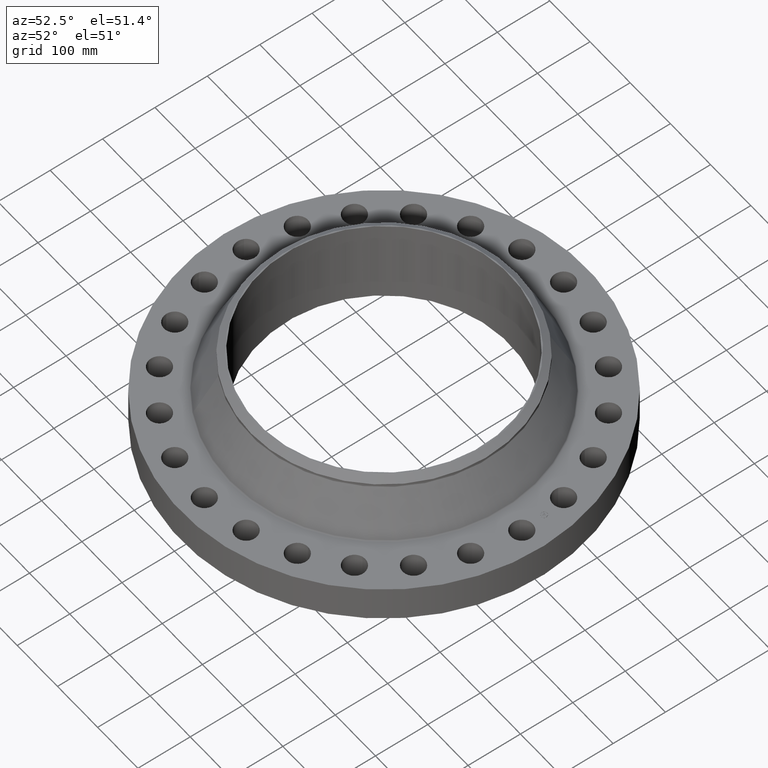
[diagram: clean part render]
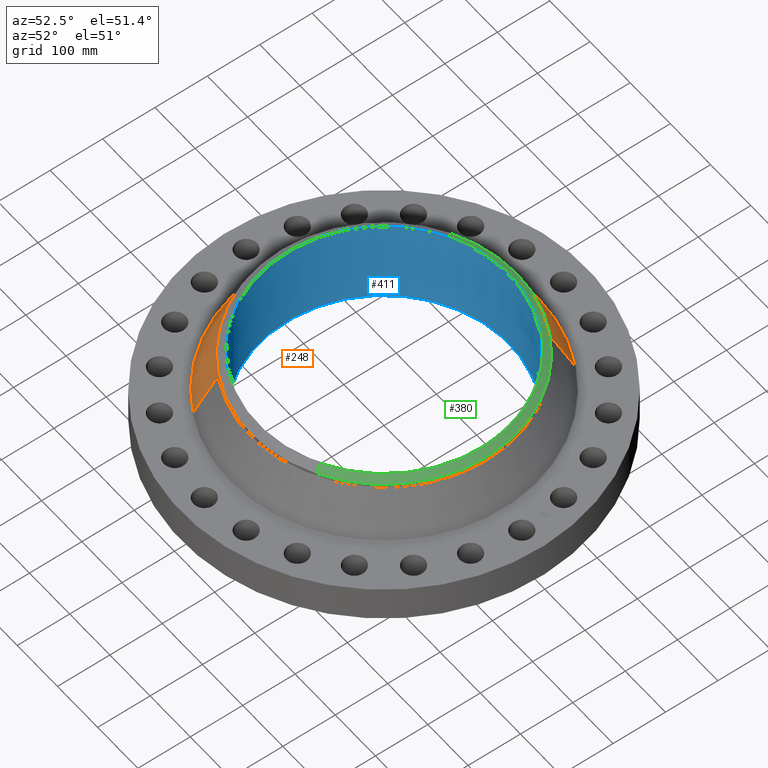
[diagram: same view with three faces highlighted in distinct colors, each labeled with its STEP entity id]
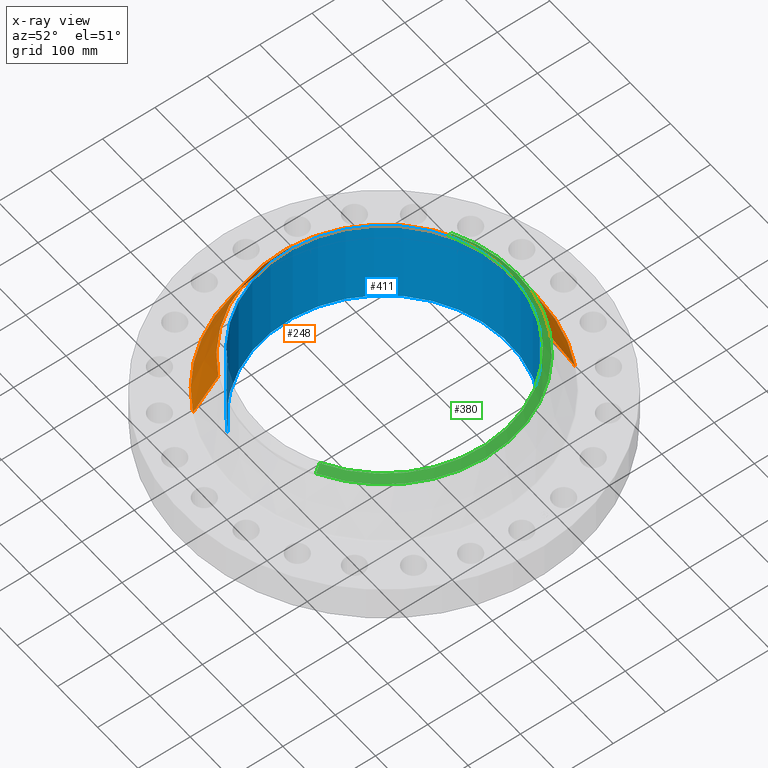
[diagram: x-ray of the same camera — body ghosted, the three highlighted faces saturated]
A machine part, auxiliary view with three faces highlighted in distinct colors.
The next image is the same camera in x-ray (body ghosted, the three faces saturated) — at least one of them is partly hidden behind the body in this view.
Their STEP definitions:

[orange] entity #248 — the highlighted conical surface has half-angle 25.721 deg.
#196=AXIS2_PLACEMENT_3D('Circle Axis2P3D',#194,#195,$) ;
#209=AXIS2_PLACEMENT_3D('Cone Axis2P3D',#206,#207,#208) ;
#239=AXIS2_PLACEMENT_3D('Circle Axis2P3D',#237,#238,$) ;
#167=CARTESIAN_POINT('Vertex',(5.52647292352,10.1161408309,2.81792133687)) ;
#174=CARTESIAN_POINT('Vertex',(-5.52647292352,-10.1161408309,2.81792133687)) ;
#194=CARTESIAN_POINT('Axis2P3D Location',(0.,0.,2.81792133687)) ;
#206=CARTESIAN_POINT('Axis2P3D Location',(0.,0.,5.9884067446)) ;
#211=CARTESIAN_POINT('Line Origine',(5.16036415479,9.44598322491,4.40316404073)) ;
#215=CARTESIAN_POINT('Vertex',(4.79425538606,8.77582561894,5.9884067446)) ;
#222=CARTESIAN_POINT('Vertex',(-4.79425538606,-8.77582561894,5.9884067446)) ;
#225=CARTESIAN_POINT('Line Origine',(-5.16036415479,-9.44598322491,4.40316404073)) ;
#237=CARTESIAN_POINT('Axis2P3D Location',(0.,0.,5.9884067446)) ;
#195=DIRECTION('Axis2P3D Direction',(0.,0.,-0.0393700787402)) ;
#207=DIRECTION('Axis2P3D Direction',(0.,0.,-0.0393700787402)) ;
#208=DIRECTION('Axis2P3D XDirection',(-0.0188750212049,-0.0345504945626,0.)) ;
#212=DIRECTION('Vector Direction',(0.00819154892625,0.0149945297313,-0.0354692219302)) ;
#226=DIRECTION('Vector Direction',(-0.00819154892625,-0.0149945297313,-0.0354692219302)) ;
#238=DIRECTION('Axis2P3D Direction',(0.,0.,-0.0393700787402)) ;
#213=VECTOR('Line Direction',#212,0.0393700787402) ;
#227=VECTOR('Line Direction',#226,0.0393700787402) ;
#243=ORIENTED_EDGE('',*,*,#198,.F.) ;
#244=ORIENTED_EDGE('',*,*,#229,.T.) ;
#245=ORIENTED_EDGE('',*,*,#241,.T.) ;
#246=ORIENTED_EDGE('',*,*,#217,.F.) ;
#248=ADVANCED_FACE('PartBody',(#247),#210,.T.) ;
#197=CIRCLE('generated circle',#196,11.5272810448) ;
#240=CIRCLE('generated circle',#239,10.) ;
#210=CONICAL_SURFACE('Cone',#209,10.,0.448915628643) ;
#198=EDGE_CURVE('',#175,#168,#197,.T.) ;
#217=EDGE_CURVE('',#168,#216,#214,.F.) ;
#229=EDGE_CURVE('',#175,#223,#228,.F.) ;
#241=EDGE_CURVE('',#223,#216,#240,.T.) ;
#242=EDGE_LOOP('',(#243,#244,#245,#246)) ;
#247=FACE_OUTER_BOUND('',#242,.T.) ;
#214=LINE('Line',#211,#213) ;
#228=LINE('Line',#225,#227) ;
#168=VERTEX_POINT('',#167) ;
#175=VERTEX_POINT('',#174) ;
#216=VERTEX_POINT('',#215) ;
#223=VERTEX_POINT('',#222) ;

[blue] entity #411 — the highlighted cylindrical surface (partial cylindrical patch) has radius 238.912 mm, axis along (0, 0, -1).
#356=AXIS2_PLACEMENT_3D('Circle Axis2P3D',#354,#355,$) ;
#384=AXIS2_PLACEMENT_3D('Cylinder Axis2P3D',#381,#382,#383) ;
#395=AXIS2_PLACEMENT_3D('Circle Axis2P3D',#393,#394,$) ;
#354=CARTESIAN_POINT('Axis2P3D Location',(0.,0.,6.62000000003)) ;
#358=CARTESIAN_POINT('Vertex',(-4.50947661613,-8.25454157717,6.62000000003)) ;
#360=CARTESIAN_POINT('Vertex',(4.50947661613,8.25454157717,6.62000000003)) ;
#381=CARTESIAN_POINT('Axis2P3D Location',(0.,0.,3.31000000001)) ;
#386=CARTESIAN_POINT('Line Origine',(-4.50947661613,-8.25454157717,3.31000000001)) ;
#390=CARTESIAN_POINT('Vertex',(-4.50947661613,-8.25454157717,-6.82568612305E-014)) ;
#393=CARTESIAN_POINT('Axis2P3D Location',(0.,0.,-6.82568612305E-014)) ;
#397=CARTESIAN_POINT('Vertex',(4.50947661613,8.25454157717,-6.82568612305E-014)) ;
#400=CARTESIAN_POINT('Line Origine',(4.50947661613,8.25454157717,3.31000000001)) ;
#355=DIRECTION('Axis2P3D Direction',(0.,0.,-0.0393700787402)) ;
#382=DIRECTION('Axis2P3D Direction',(0.,0.,-0.0393700787402)) ;
#383=DIRECTION('Axis2P3D XDirection',(0.0188750212049,0.0345504945626,0.)) ;
#387=DIRECTION('Vector Direction',(0.,0.,-0.0393700787402)) ;
#394=DIRECTION('Axis2P3D Direction',(0.,0.,-0.0393700787402)) ;
#401=DIRECTION('Vector Direction',(0.,0.,-0.0393700787402)) ;
#388=VECTOR('Line Direction',#387,0.0393700787402) ;
#402=VECTOR('Line Direction',#401,0.0393700787402) ;
#406=ORIENTED_EDGE('',*,*,#362,.F.) ;
#407=ORIENTED_EDGE('',*,*,#392,.T.) ;
#408=ORIENTED_EDGE('',*,*,#399,.T.) ;
#409=ORIENTED_EDGE('',*,*,#404,.F.) ;
#411=ADVANCED_FACE('PartBody',(#410),#385,.F.) ;
#357=CIRCLE('generated circle',#356,9.40600000004) ;
#396=CIRCLE('generated circle',#395,9.40600000004) ;
#385=CYLINDRICAL_SURFACE('generated cylinder',#384,9.40600000004) ;
#362=EDGE_CURVE('',#359,#361,#357,.T.) ;
#392=EDGE_CURVE('',#359,#391,#389,.T.) ;
#399=EDGE_CURVE('',#391,#398,#396,.T.) ;
#404=EDGE_CURVE('',#361,#398,#403,.T.) ;
#405=EDGE_LOOP('',(#406,#407,#408,#409)) ;
#410=FACE_OUTER_BOUND('',#405,.T.) ;
#389=LINE('Line',#386,#388) ;
#403=LINE('Line',#400,#402) ;
#359=VERTEX_POINT('',#358) ;
#361=VERTEX_POINT('',#360) ;
#391=VERTEX_POINT('',#390) ;
#398=VERTEX_POINT('',#397) ;

[green] entity #380 — the highlighted conical surface has half-angle 52.5 deg.
#270=AXIS2_PLACEMENT_3D('Circle Axis2P3D',#268,#269,$) ;
#297=AXIS2_PLACEMENT_3D('Circle Axis2P3D',#295,#296,$) ;
#311=AXIS2_PLACEMENT_3D('Cone Axis2P3D',#308,#309,#310) ;
#347=AXIS2_PLACEMENT_3D('Circle Axis2P3D',#345,#346,$) ;
#265=CARTESIAN_POINT('Vertex',(4.79425538606,8.77582561894,6.22462721704)) ;
#268=CARTESIAN_POINT('Axis2P3D Location',(0.,0.,6.22462721704)) ;
#272=CARTESIAN_POINT('Vertex',(4.79425538606,-8.77582561894,6.22462721704)) ;
#292=CARTESIAN_POINT('Vertex',(-4.79425538606,8.77582561894,6.22462721704)) ;
#295=CARTESIAN_POINT('Axis2P3D Location',(0.,0.,6.22462721704)) ;
#308=CARTESIAN_POINT('Axis2P3D Location',(0.,0.,6.62000000003)) ;
#313=CARTESIAN_POINT('Line Origine',(4.6707410223,-8.54973409262,6.42231360853)) ;
#317=CARTESIAN_POINT('Vertex',(4.54722665854,-8.3236425663,6.62000000003)) ;
#324=CARTESIAN_POINT('Vertex',(-4.54722665854,8.3236425663,6.62000000003)) ;
#327=CARTESIAN_POINT('Line Origine',(-4.6707410223,8.54973409262,6.42231360853)) ;
#345=CARTESIAN_POINT('Axis2P3D Location',(0.,0.,6.62000000003)) ;
#269=DIRECTION('Axis2P3D Direction',(0.,0.,-0.0393700787402)) ;
#296=DIRECTION('Axis2P3D Direction',(0.,0.,-0.0393700787402)) ;
#309=DIRECTION('Axis2P3D Direction',(-0.,-0.,-0.0393700787402)) ;
#310=DIRECTION('Axis2P3D XDirection',(-0.0188750212049,0.0345504945626,0.)) ;
#314=DIRECTION('Vector Direction',(0.014974561121,-0.02741075027,-0.023966985394)) ;
#328=DIRECTION('Vector Direction',(-0.014974561121,0.02741075027,-0.023966985394)) ;
#346=DIRECTION('Axis2P3D Direction',(0.,0.,-0.0393700787402)) ;
#315=VECTOR('Line Direction',#314,0.0393700787402) ;
#329=VECTOR('Line Direction',#328,0.0393700787402) ;
#374=ORIENTED_EDGE('',*,*,#331,.F.) ;
#375=ORIENTED_EDGE('',*,*,#349,.F.) ;
#376=ORIENTED_EDGE('',*,*,#319,.T.) ;
#377=ORIENTED_EDGE('',*,*,#274,.T.) ;
#378=ORIENTED_EDGE('',*,*,#299,.F.) ;
#380=ADVANCED_FACE('PartBody',(#379),#312,.T.) ;
#271=CIRCLE('generated circle',#270,10.) ;
#298=CIRCLE('generated circle',#297,10.) ;
#348=CIRCLE('generated circle',#347,9.48474015752) ;
#312=CONICAL_SURFACE('Cone',#311,9.48474015752,0.916297857297) ;
#274=EDGE_CURVE('',#273,#266,#271,.F.) ;
#299=EDGE_CURVE('',#293,#266,#298,.T.) ;
#319=EDGE_CURVE('',#318,#273,#316,.T.) ;
#331=EDGE_CURVE('',#325,#293,#330,.T.) ;
#349=EDGE_CURVE('',#318,#325,#348,.F.) ;
#373=EDGE_LOOP('',(#374,#375,#376,#377,#378)) ;
#379=FACE_OUTER_BOUND('',#373,.T.) ;
#316=LINE('Line',#313,#315) ;
#330=LINE('Line',#327,#329) ;
#266=VERTEX_POINT('',#265) ;
#273=VERTEX_POINT('',#272) ;
#293=VERTEX_POINT('',#292) ;
#318=VERTEX_POINT('',#317) ;
#325=VERTEX_POINT('',#324) ;